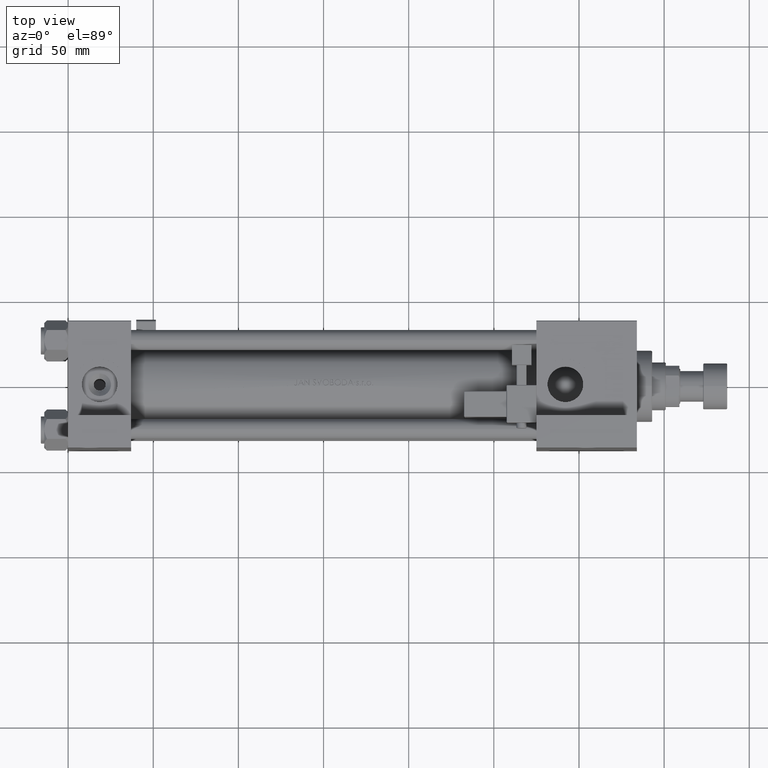
[diagram: clean part render]
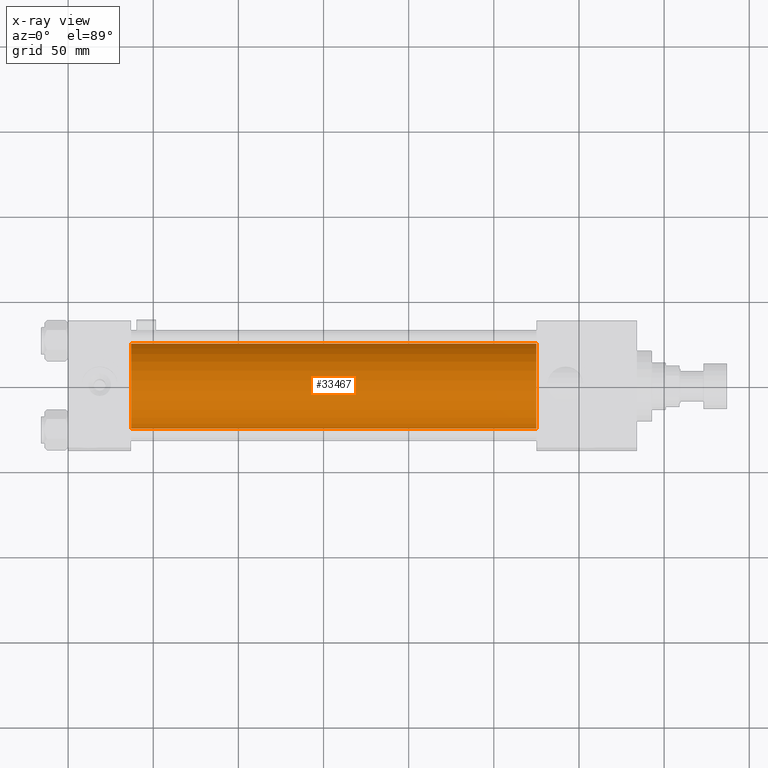
[diagram: x-ray — body ghosted, one internal face saturated and labeled with its STEP entity id]
A machine part, top view, then the same camera in x-ray: the body is ghosted and one INTERNAL B-rep face — a face not visible from any outside direction — is saturated and labeled: STEP entity #33467.
In plain terms, the highlighted cylindrical surface (partial cylindrical patch) has radius 25 mm, axis along (-1, -0, 0).
Its self-contained STEP definition (entity closure, byte-faithful):
#146 = DIRECTION ( 'NONE',  ( -1.000000000000000000, -0.000000000000000000, -0.000000000000000000 ) ) ;
#708 = EDGE_CURVE ( 'NONE', #29281, #36085, #11635, .T. ) ;
#1008 = ORIENTED_EDGE ( 'NONE', *, *, #43254, .F. ) ;
#1016 = ORIENTED_EDGE ( 'NONE', *, *, #708, .T. ) ;
#5182 = DIRECTION ( 'NONE',  ( 0.000000000000000000, 0.000000000000000000, 1.000000000000000000 ) ) ;
#7044 = VECTOR ( 'NONE', #52273, 1000.000000000000000 ) ;
#9149 = CARTESIAN_POINT ( 'NONE',  ( 274.9999999999999432, 0.000000000000000000, -0.5000000000000004441 ) ) ;
#10199 = FACE_OUTER_BOUND ( 'NONE', #29841, .T. ) ;
#11569 = AXIS2_PLACEMENT_3D ( 'NONE', #31395, #15288, #48056 ) ;
#11635 = CIRCLE ( 'NONE', #32693, 25.00000000000000000 ) ;
#11887 = CARTESIAN_POINT ( 'NONE',  ( 274.9999999999999432, 3.061616997868383043E-15, -25.50000000000000355 ) ) ;
#15288 = DIRECTION ( 'NONE',  ( 1.000000000000000000, 0.000000000000000000, 0.000000000000000000 ) ) ;
#15467 = LINE ( 'NONE', #31836, #25489 ) ;
#17495 = CARTESIAN_POINT ( 'NONE',  ( 274.9999999999999432, 0.000000000000000000, 24.50000000000000000 ) ) ;
#19294 = ORIENTED_EDGE ( 'NONE', *, *, #35246, .T. ) ;
#24439 = DIRECTION ( 'NONE',  ( 1.000000000000000000, 0.000000000000000000, 0.000000000000000000 ) ) ;
#25252 = DIRECTION ( 'NONE',  ( -1.000000000000000000, -0.000000000000000000, -0.000000000000000000 ) ) ;
#25489 = VECTOR ( 'NONE', #146, 1000.000000000000000 ) ;
#26948 = ORIENTED_EDGE ( 'NONE', *, *, #28697, .F. ) ;
#28697 = EDGE_CURVE ( 'NONE', #29281, #50692, #15467, .T. ) ;
#29281 = VERTEX_POINT ( 'NONE', #17495 ) ;
#29841 = EDGE_LOOP ( 'NONE', ( #1016, #19294, #1008, #26948 ) ) ;
#30291 = CARTESIAN_POINT ( 'NONE',  ( 274.9999999999999432, 0.000000000000000000, -0.5000000000000004441 ) ) ;
#31395 = CARTESIAN_POINT ( 'NONE',  ( 37.00000000000000000, 0.000000000000000000, -0.5000000000000004441 ) ) ;
#31836 = CARTESIAN_POINT ( 'NONE',  ( 274.9999999999999432, 0.000000000000000000, 24.50000000000000000 ) ) ;
#31992 = CARTESIAN_POINT ( 'NONE',  ( 37.00000000000000000, 3.061616997868383043E-15, -25.50000000000000355 ) ) ;
#32610 = VERTEX_POINT ( 'NONE', #31992 ) ;
#32693 = AXIS2_PLACEMENT_3D ( 'NONE', #30291, #24439, #52193 ) ;
#33467 = ADVANCED_FACE ( 'NONE', ( #10199 ), #45334, .F. ) ;
#35246 = EDGE_CURVE ( 'NONE', #36085, #32610, #36138, .T. ) ;
#35836 = CARTESIAN_POINT ( 'NONE',  ( 37.00000000000000000, 0.000000000000000000, 24.50000000000000000 ) ) ;
#36085 = VERTEX_POINT ( 'NONE', #11887 ) ;
#36138 = LINE ( 'NONE', #45126, #7044 ) ;
#39127 = AXIS2_PLACEMENT_3D ( 'NONE', #9149, #25252, #5182 ) ;
#43254 = EDGE_CURVE ( 'NONE', #50692, #32610, #46148, .T. ) ;
#45126 = CARTESIAN_POINT ( 'NONE',  ( 274.9999999999999432, 3.061616997868383043E-15, -25.50000000000000355 ) ) ;
#45334 = CYLINDRICAL_SURFACE ( 'NONE', #39127, 25.00000000000000000 ) ;
#46148 = CIRCLE ( 'NONE', #11569, 25.00000000000000000 ) ;
#48056 = DIRECTION ( 'NONE',  ( 0.000000000000000000, 0.000000000000000000, -1.000000000000000000 ) ) ;
#50692 = VERTEX_POINT ( 'NONE', #35836 ) ;
#52193 = DIRECTION ( 'NONE',  ( 0.000000000000000000, 0.000000000000000000, -1.000000000000000000 ) ) ;
#52273 = DIRECTION ( 'NONE',  ( -1.000000000000000000, -0.000000000000000000, -0.000000000000000000 ) ) ;